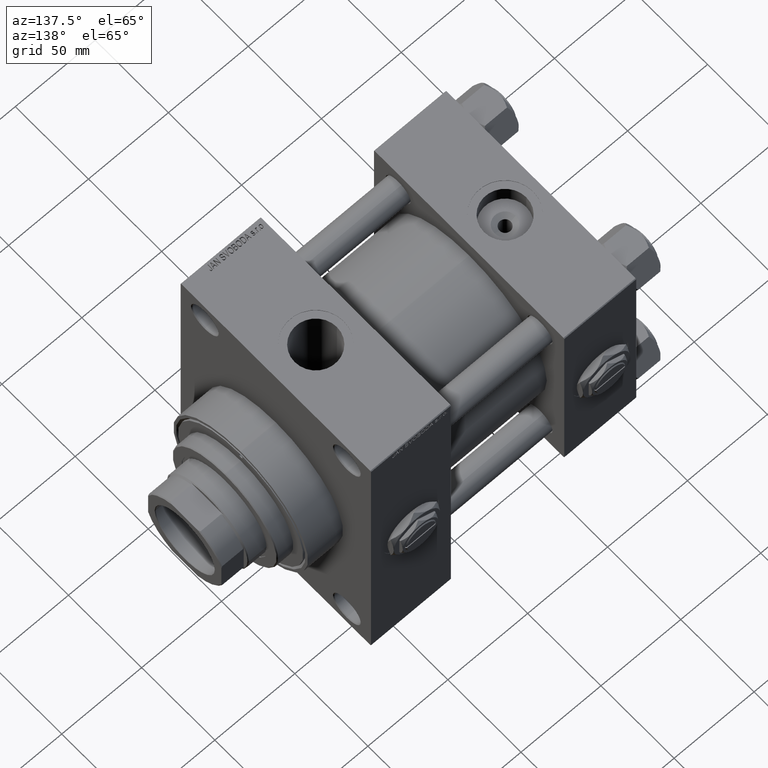
[diagram: clean part render]
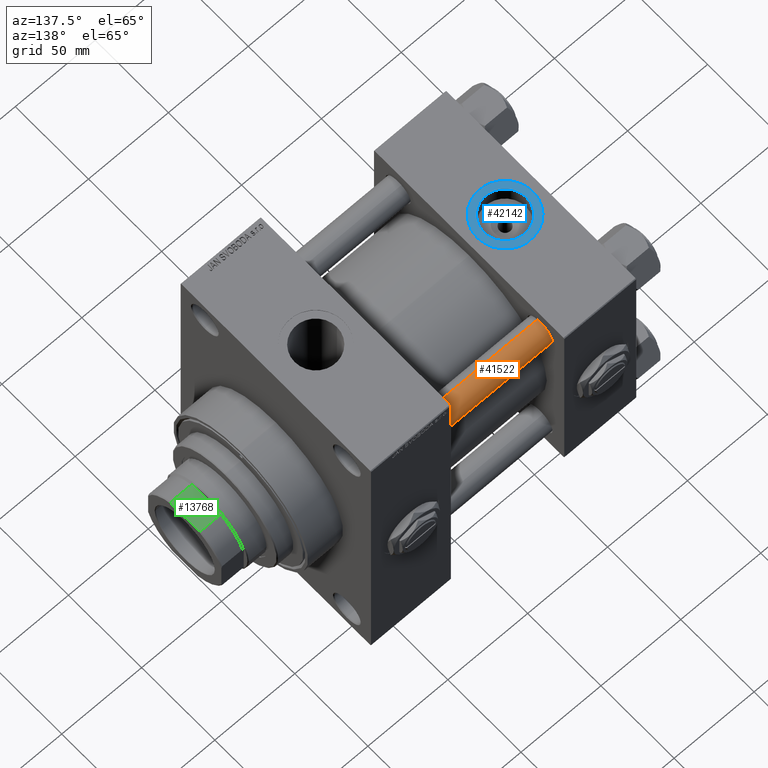
[diagram: same view with three faces highlighted in distinct colors, each labeled with its STEP entity id]
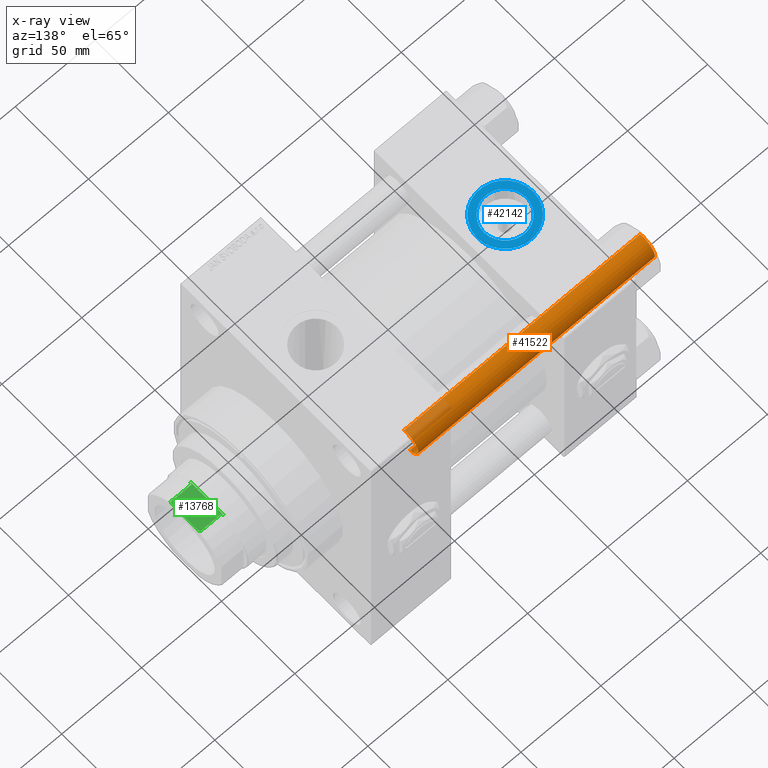
[diagram: x-ray of the same camera — body ghosted, the three highlighted faces saturated]
A machine part, auxiliary view with three faces highlighted in distinct colors.
The next image is the same camera in x-ray (body ghosted, the three faces saturated) — at least one of them is partly hidden behind the body in this view.
Their STEP definitions:

[orange] entity #41522 — the highlighted cylindrical surface (edge-blend (fillet) strip) has radius 8 mm, axis along (-1, -0, 0).
#6138 = ORIENTED_EDGE ( 'NONE', *, *, #26646, .T. ) ;
#6480 = DIRECTION ( 'NONE',  ( -0.000000000000000000, -0.000000000000000000, -1.000000000000000000 ) ) ;
#6680 = CARTESIAN_POINT ( 'NONE',  ( 0.000000000000000000, 0.000000000000000000, 0.5000000000000281997 ) ) ;
#7790 = AXIS2_PLACEMENT_3D ( 'NONE', #6680, #9981, #28993 ) ;
#9981 = DIRECTION ( 'NONE',  ( -0.000000000000000000, -0.000000000000000000, 1.000000000000000000 ) ) ;
#10206 = FACE_OUTER_BOUND ( 'NONE', #13013, .T. ) ;
#10247 = CIRCLE ( 'NONE', #20002, 8.000000000000000000 ) ;
#10998 = ORIENTED_EDGE ( 'NONE', *, *, #24664, .T. ) ;
#13013 = EDGE_LOOP ( 'NONE', ( #45190, #10998, #6138, #44450 ) ) ;
#13759 = DIRECTION ( 'NONE',  ( -0.000000000000000000, -0.000000000000000000, -1.000000000000000000 ) ) ;
#14253 = CARTESIAN_POINT ( 'NONE',  ( 0.000000000000000000, 0.000000000000000000, 149.0000000000000000 ) ) ;
#20002 = AXIS2_PLACEMENT_3D ( 'NONE', #21746, #21249, #36462 ) ;
#20272 = CARTESIAN_POINT ( 'NONE',  ( -8.000000000000000000, 0.000000000000000000, 148.5000000000000000 ) ) ;
#21249 = DIRECTION ( 'NONE',  ( 0.000000000000000000, 0.000000000000000000, -1.000000000000000000 ) ) ;
#21746 = CARTESIAN_POINT ( 'NONE',  ( 0.000000000000000000, 0.000000000000000000, 148.5000000000000000 ) ) ;
#21753 = VECTOR ( 'NONE', #6480, 1000.000000000000000 ) ;
#21932 = LINE ( 'NONE', #49266, #21753 ) ;
#22415 = CARTESIAN_POINT ( 'NONE',  ( 8.000000000000000000, 9.797174393178825657E-16, 148.5000000000000000 ) ) ;
#24664 = EDGE_CURVE ( 'NONE', #32107, #37977, #34588, .T. ) ;
#24793 = CIRCLE ( 'NONE', #7790, 8.000000000000000000 ) ;
#26163 = CARTESIAN_POINT ( 'NONE',  ( -8.000000000000000000, 0.000000000000000000, 0.5000000000000281997 ) ) ;
#26476 = CARTESIAN_POINT ( 'NONE',  ( 8.000000000000000000, 9.797174393178825657E-16, 149.0000000000000000 ) ) ;
#26646 = EDGE_CURVE ( 'NONE', #37977, #48369, #24793, .T. ) ;
#26730 = DIRECTION ( 'NONE',  ( -0.000000000000000000, -0.000000000000000000, -1.000000000000000000 ) ) ;
#28993 = DIRECTION ( 'NONE',  ( 1.000000000000000000, 0.000000000000000000, 0.000000000000000000 ) ) ;
#29699 = VECTOR ( 'NONE', #26730, 1000.000000000000000 ) ;
#29717 = DIRECTION ( 'NONE',  ( -1.000000000000000000, 0.000000000000000000, 0.000000000000000000 ) ) ;
#32107 = VERTEX_POINT ( 'NONE', #22415 ) ;
#34588 = LINE ( 'NONE', #26476, #29699 ) ;
#36462 = DIRECTION ( 'NONE',  ( 1.000000000000000000, 0.000000000000000000, 0.000000000000000000 ) ) ;
#37594 = EDGE_CURVE ( 'NONE', #49192, #32107, #10247, .T. ) ;
#37977 = VERTEX_POINT ( 'NONE', #45702 ) ;
#41522 = ADVANCED_FACE ( 'NONE', ( #10206 ), #48946, .T. ) ;
#43582 = AXIS2_PLACEMENT_3D ( 'NONE', #14253, #13759, #29717 ) ;
#44450 = ORIENTED_EDGE ( 'NONE', *, *, #45724, .F. ) ;
#45190 = ORIENTED_EDGE ( 'NONE', *, *, #37594, .T. ) ;
#45702 = CARTESIAN_POINT ( 'NONE',  ( 8.000000000000000000, 9.797174393178825657E-16, 0.5000000000000281997 ) ) ;
#45724 = EDGE_CURVE ( 'NONE', #49192, #48369, #21932, .T. ) ;
#48369 = VERTEX_POINT ( 'NONE', #26163 ) ;
#48946 = CYLINDRICAL_SURFACE ( 'NONE', #43582, 8.000000000000000000 ) ;
#49192 = VERTEX_POINT ( 'NONE', #20272 ) ;
#49266 = CARTESIAN_POINT ( 'NONE',  ( -8.000000000000000000, 0.000000000000000000, 149.0000000000000000 ) ) ;

[blue] entity #42142 — the highlighted planar face has unit normal (0, 0, 1).
#3749 = PLANE ( 'NONE',  #9600 ) ;
#7041 = FACE_BOUND ( 'NONE', #38129, .T. ) ;
#8876 = ORIENTED_EDGE ( 'NONE', *, *, #43351, .F. ) ;
#9600 = AXIS2_PLACEMENT_3D ( 'NONE', #37702, #41988, #19204 ) ;
#10681 = EDGE_CURVE ( 'NONE', #32890, #30991, #42405, .T. ) ;
#12444 = DIRECTION ( 'NONE',  ( 1.000000000000000000, 0.000000000000000000, 0.000000000000000000 ) ) ;
#12858 = CIRCLE ( 'NONE', #45195, 17.50000000000000000 ) ;
#14456 = EDGE_LOOP ( 'NONE', ( #38133, #32091 ) ) ;
#14732 = CARTESIAN_POINT ( 'NONE',  ( 22.50000000000000000, -8.673617379884035472E-15, 64.79999999999999716 ) ) ;
#16802 = CIRCLE ( 'NONE', #32297, 17.50000000000000000 ) ;
#18294 = DIRECTION ( 'NONE',  ( 1.000000000000000000, 0.000000000000000000, 0.000000000000000000 ) ) ;
#19204 = DIRECTION ( 'NONE',  ( 1.000000000000000000, 0.000000000000000000, -0.000000000000000000 ) ) ;
#19846 = VERTEX_POINT ( 'NONE', #43247 ) ;
#20405 = VERTEX_POINT ( 'NONE', #26186 ) ;
#22075 = CARTESIAN_POINT ( 'NONE',  ( 9.279999999999994031, -7.054634311411234321E-15, 64.79999999999999716 ) ) ;
#22475 = CARTESIAN_POINT ( 'NONE',  ( 22.50000000000000000, -8.673617379884035472E-15, 64.79999999999999716 ) ) ;
#22500 = FACE_OUTER_BOUND ( 'NONE', #14456, .T. ) ;
#24300 = CARTESIAN_POINT ( 'NONE',  ( 22.50000000000000000, -8.673617379884035472E-15, 64.79999999999999716 ) ) ;
#24930 = CIRCLE ( 'NONE', #41874, 13.22000000000000242 ) ;
#26147 = DIRECTION ( 'NONE',  ( 0.000000000000000000, 0.000000000000000000, 1.000000000000000000 ) ) ;
#26186 = CARTESIAN_POINT ( 'NONE',  ( 40.00000000000000000, -8.673617379884035472E-15, 64.79999999999999716 ) ) ;
#27369 = DIRECTION ( 'NONE',  ( 0.000000000000000000, 0.000000000000000000, 1.000000000000000000 ) ) ;
#28304 = CARTESIAN_POINT ( 'NONE',  ( 35.71999999999999886, -8.673617379884035472E-15, 64.79999999999999716 ) ) ;
#28649 = AXIS2_PLACEMENT_3D ( 'NONE', #47131, #35752, #12444 ) ;
#30991 = VERTEX_POINT ( 'NONE', #22075 ) ;
#32091 = ORIENTED_EDGE ( 'NONE', *, *, #45277, .T. ) ;
#32297 = AXIS2_PLACEMENT_3D ( 'NONE', #14732, #26147, #18294 ) ;
#32890 = VERTEX_POINT ( 'NONE', #28304 ) ;
#33386 = ORIENTED_EDGE ( 'NONE', *, *, #10681, .F. ) ;
#35752 = DIRECTION ( 'NONE',  ( 0.000000000000000000, 0.000000000000000000, 1.000000000000000000 ) ) ;
#37702 = CARTESIAN_POINT ( 'NONE',  ( 22.50000000000000000, -8.673617379884035472E-15, 64.79999999999999716 ) ) ;
#37930 = DIRECTION ( 'NONE',  ( 1.000000000000000000, 0.000000000000000000, 0.000000000000000000 ) ) ;
#38129 = EDGE_LOOP ( 'NONE', ( #33386, #8876 ) ) ;
#38133 = ORIENTED_EDGE ( 'NONE', *, *, #42661, .T. ) ;
#39750 = DIRECTION ( 'NONE',  ( 1.000000000000000000, 0.000000000000000000, 0.000000000000000000 ) ) ;
#41874 = AXIS2_PLACEMENT_3D ( 'NONE', #22475, #49064, #37930 ) ;
#41988 = DIRECTION ( 'NONE',  ( 0.000000000000000000, 0.000000000000000000, 1.000000000000000000 ) ) ;
#42142 = ADVANCED_FACE ( 'NONE', ( #7041, #22500 ), #3749, .T. ) ;
#42405 = CIRCLE ( 'NONE', #28649, 13.22000000000000242 ) ;
#42661 = EDGE_CURVE ( 'NONE', #20405, #19846, #16802, .T. ) ;
#43247 = CARTESIAN_POINT ( 'NONE',  ( 4.999999999999997335, -6.530485481376167224E-15, 64.79999999999999716 ) ) ;
#43351 = EDGE_CURVE ( 'NONE', #30991, #32890, #24930, .T. ) ;
#45195 = AXIS2_PLACEMENT_3D ( 'NONE', #24300, #27369, #39750 ) ;
#45277 = EDGE_CURVE ( 'NONE', #19846, #20405, #12858, .T. ) ;
#47131 = CARTESIAN_POINT ( 'NONE',  ( 22.50000000000000000, -8.673617379884035472E-15, 64.79999999999999716 ) ) ;
#49064 = DIRECTION ( 'NONE',  ( 0.000000000000000000, 0.000000000000000000, 1.000000000000000000 ) ) ;

[green] entity #13768 — the highlighted planar face has unit normal (0, 0, -1).
#39 = CARTESIAN_POINT ( 'NONE',  ( 11.03952915007668345, -25.00000000000000000, 164.1736838211911049 ) ) ;
#1540 = EDGE_CURVE ( 'NONE', #26143, #26965, #27828, .T. ) ;
#2171 = CARTESIAN_POINT ( 'NONE',  ( -10.19803902718555655, -25.00000000000000000, 164.5000000000000000 ) ) ;
#2605 = DIRECTION ( 'NONE',  ( 0.000000000000000000, 1.000000000000000000, 0.000000000000000000 ) ) ;
#3723 = CARTESIAN_POINT ( 'NONE',  ( 10.19803902718555655, -25.00000000000000000, 164.5000000000000000 ) ) ;
#4478 = AXIS2_PLACEMENT_3D ( 'NONE', #20862, #2605, #13994 ) ;
#4733 = CARTESIAN_POINT ( 'NONE',  ( -11.03923433039705593, -25.00000000000000000, 164.1738066424182136 ) ) ;
#5406 = PLANE ( 'NONE',  #4478 ) ;
#5434 = CARTESIAN_POINT ( 'NONE',  ( 9.731776668926034546, -25.00000000000000000, 177.6761096935718172 ) ) ;
#5583 = ORIENTED_EDGE ( 'NONE', *, *, #9776, .T. ) ;
#6290 = ORIENTED_EDGE ( 'NONE', *, *, #45789, .T. ) ;
#7223 = LINE ( 'NONE', #35104, #19044 ) ;
#7313 = CARTESIAN_POINT ( 'NONE',  ( -9.731776668926025664, -25.00000000000000000, 177.6761096935718456 ) ) ;
#9776 = EDGE_CURVE ( 'NONE', #42529, #23064, #45212, .T. ) ;
#10722 = VERTEX_POINT ( 'NONE', #39054 ) ;
#11026 = LINE ( 'NONE', #38139, #37730 ) ;
#11112 = CARTESIAN_POINT ( 'NONE',  ( -10.19803902718555655, -25.00000000000000000, 177.5000000000000568 ) ) ;
#11981 = B_SPLINE_CURVE_WITH_KNOTS ( 'NONE', 3,
 ( #32797, #5434, #25189, #36834 ),
 .UNSPECIFIED., .F., .F.,
 ( 4, 4 ),
 ( 0.000000000000000000, 0.001494935877429967412 ),
 .UNSPECIFIED. ) ;
#12192 = CARTESIAN_POINT ( 'NONE',  ( 10.19803902718555655, -25.00000000000000000, 164.5000000000000000 ) ) ;
#12605 = CARTESIAN_POINT ( 'NONE',  ( -8.789197915623482515, -25.00000000000000000, 178.0000000000000284 ) ) ;
#13043 = ORIENTED_EDGE ( 'NONE', *, *, #35186, .F. ) ;
#13565 = EDGE_LOOP ( 'NONE', ( #15593, #26823, #13043, #49857, #23393, #47374, #6290, #5583 ) ) ;
#13768 = ADVANCED_FACE ( 'NONE', ( #24658 ), #5406, .F. ) ;
#13994 = DIRECTION ( 'NONE',  ( 0.000000000000000000, -0.000000000000000000, 1.000000000000000000 ) ) ;
#14329 = VECTOR ( 'NONE', #18220, 1000.000000000000000 ) ;
#15593 = ORIENTED_EDGE ( 'NONE', *, *, #17112, .T. ) ;
#15834 = DIRECTION ( 'NONE',  ( 1.000000000000000000, 0.000000000000000000, 0.000000000000000000 ) ) ;
#17112 = EDGE_CURVE ( 'NONE', #23064, #10722, #45051, .T. ) ;
#17416 = B_SPLINE_CURVE_WITH_KNOTS ( 'NONE', 3,
 ( #23486, #46512, #4733, #49808 ),
 .UNSPECIFIED., .F., .F.,
 ( 4, 4 ),
 ( 0.1347300791724978242, 0.1360693631961248928 ),
 .UNSPECIFIED. ) ;
#18220 = DIRECTION ( 'NONE',  ( -0.000000000000000000, -0.000000000000000000, 1.000000000000000000 ) ) ;
#19044 = VECTOR ( 'NONE', #15834, 1000.000000000000000 ) ;
#19799 = CARTESIAN_POINT ( 'NONE',  ( 10.62014219435931039, -25.00000000000000000, 164.3405694602838025 ) ) ;
#20862 = CARTESIAN_POINT ( 'NONE',  ( -24.99999999999999289, -25.00000000000000000, 178.0000000000000284 ) ) ;
#21512 = CARTESIAN_POINT ( 'NONE',  ( 10.19803902718555655, -25.00000000000000000, -0.001000000000001000089 ) ) ;
#23045 = VERTEX_POINT ( 'NONE', #39177 ) ;
#23064 = VERTEX_POINT ( 'NONE', #3723 ) ;
#23393 = ORIENTED_EDGE ( 'NONE', *, *, #29564, .F. ) ;
#23486 = CARTESIAN_POINT ( 'NONE',  ( -10.19803902718555655, -25.00000000000000000, 164.5000000000000000 ) ) ;
#23840 = CARTESIAN_POINT ( 'NONE',  ( 11.45643923738959025, -25.00000000000000000, 164.0000000000000000 ) ) ;
#24658 = FACE_OUTER_BOUND ( 'NONE', #13565, .T. ) ;
#25189 = CARTESIAN_POINT ( 'NONE',  ( 9.262276112429459474, -25.00000000000000000, 177.8430951735361134 ) ) ;
#25484 = CARTESIAN_POINT ( 'NONE',  ( -24.99999999999999289, -25.00000000000000000, 164.0000000000000000 ) ) ;
#25992 = DIRECTION ( 'NONE',  ( 1.000000000000000000, 0.000000000000000000, 0.000000000000000000 ) ) ;
#26143 = VERTEX_POINT ( 'NONE', #12605 ) ;
#26328 = CARTESIAN_POINT ( 'NONE',  ( -9.262276112429422170, -25.00000000000000000, 177.8430951735361134 ) ) ;
#26823 = ORIENTED_EDGE ( 'NONE', *, *, #39120, .T. ) ;
#26965 = VERTEX_POINT ( 'NONE', #49416 ) ;
#27828 = B_SPLINE_CURVE_WITH_KNOTS ( 'NONE', 3,
 ( #41518, #26328, #7313, #11112 ),
 .UNSPECIFIED., .F., .F.,
 ( 4, 4 ),
 ( 0.000000000000000000, 0.001494935877430011864 ),
 .UNSPECIFIED. ) ;
#29564 = EDGE_CURVE ( 'NONE', #40282, #26965, #11026, .T. ) ;
#30041 = LINE ( 'NONE', #25484, #47623 ) ;
#31061 = DIRECTION ( 'NONE',  ( -0.000000000000000000, -0.000000000000000000, 1.000000000000000000 ) ) ;
#31153 = CARTESIAN_POINT ( 'NONE',  ( 11.45643923738959025, -25.00000000000000000, 164.0000000000000000 ) ) ;
#32797 = CARTESIAN_POINT ( 'NONE',  ( 10.19803902718555655, -25.00000000000000000, 177.5000000000000284 ) ) ;
#35104 = CARTESIAN_POINT ( 'NONE',  ( -24.99999999999999289, -25.00000000000000000, 178.0000000000000284 ) ) ;
#35186 = EDGE_CURVE ( 'NONE', #26143, #43135, #7223, .T. ) ;
#36834 = CARTESIAN_POINT ( 'NONE',  ( 8.789197915623537583, -25.00000000000000000, 178.0000000000000284 ) ) ;
#37730 = VECTOR ( 'NONE', #31061, 1000.000000000000000 ) ;
#38139 = CARTESIAN_POINT ( 'NONE',  ( -10.19803902718555655, -25.00000000000000000, -0.001000000000001000089 ) ) ;
#39054 = CARTESIAN_POINT ( 'NONE',  ( 10.19803902718555655, -25.00000000000000000, 177.5000000000000284 ) ) ;
#39120 = EDGE_CURVE ( 'NONE', #10722, #43135, #11981, .T. ) ;
#39177 = CARTESIAN_POINT ( 'NONE',  ( -11.45643923738958492, -25.00000000000000000, 164.0000000000000000 ) ) ;
#40020 = EDGE_CURVE ( 'NONE', #40282, #23045, #17416, .T. ) ;
#40282 = VERTEX_POINT ( 'NONE', #2171 ) ;
#40726 = CARTESIAN_POINT ( 'NONE',  ( 8.789197915623537583, -25.00000000000000000, 178.0000000000000284 ) ) ;
#41518 = CARTESIAN_POINT ( 'NONE',  ( -8.789197915623482515, -25.00000000000000000, 178.0000000000000284 ) ) ;
#42529 = VERTEX_POINT ( 'NONE', #31153 ) ;
#43135 = VERTEX_POINT ( 'NONE', #40726 ) ;
#45051 = LINE ( 'NONE', #21512, #14329 ) ;
#45212 = B_SPLINE_CURVE_WITH_KNOTS ( 'NONE', 3,
 ( #23840, #39, #19799, #12192 ),
 .UNSPECIFIED., .F., .F.,
 ( 4, 4 ),
 ( 0.1613657269701884445, 0.1626835971102010281 ),
 .UNSPECIFIED. ) ;
#45789 = EDGE_CURVE ( 'NONE', #23045, #42529, #30041, .T. ) ;
#46512 = CARTESIAN_POINT ( 'NONE',  ( -10.61983482933081646, -25.00000000000000000, 164.3406855536377691 ) ) ;
#47374 = ORIENTED_EDGE ( 'NONE', *, *, #40020, .T. ) ;
#47623 = VECTOR ( 'NONE', #25992, 1000.000000000000000 ) ;
#49416 = CARTESIAN_POINT ( 'NONE',  ( -10.19803902718555655, -25.00000000000000000, 177.5000000000000568 ) ) ;
#49808 = CARTESIAN_POINT ( 'NONE',  ( -11.45643923738958492, -25.00000000000000000, 164.0000000000000000 ) ) ;
#49857 = ORIENTED_EDGE ( 'NONE', *, *, #1540, .T. ) ;